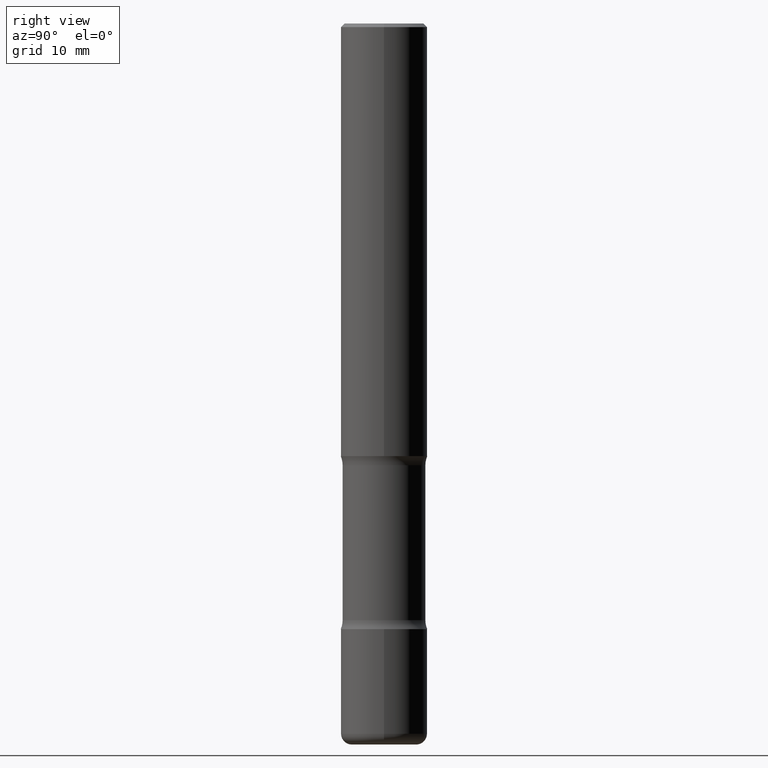
[diagram: clean part render]
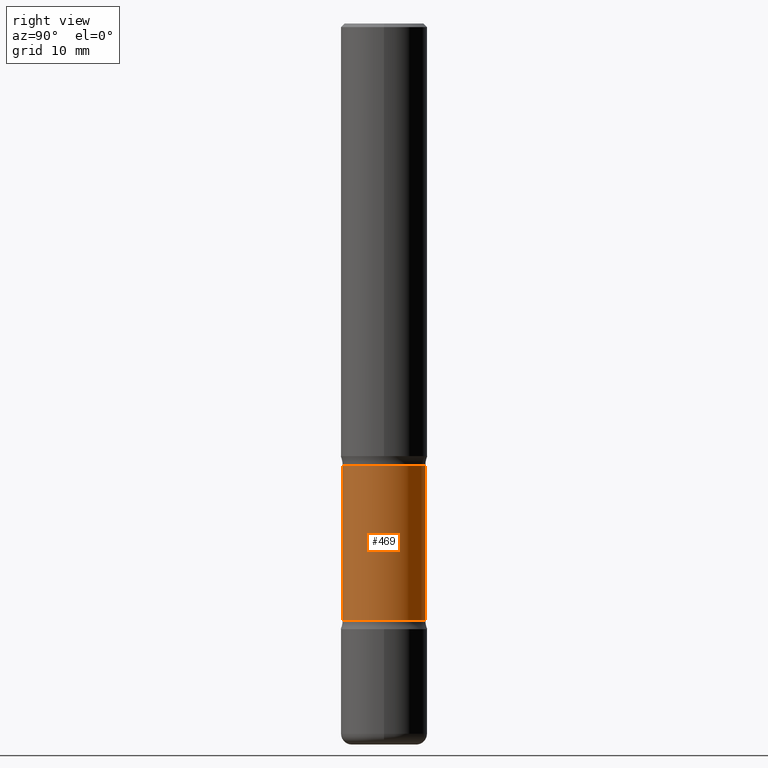
[diagram: same view with one face highlighted and labeled with its STEP entity id]
A machine part, right view. The second image highlights one B-rep face of the part: STEP entity #469.
In plain terms, the highlighted cylindrical surface (partial cylindrical patch) has radius 5.7391 mm, axis along (0, -0, -1).
Its self-contained STEP definition (entity closure, byte-faithful):
#2 = FACE_OUTER_BOUND ( 'NONE', #251, .T. ) ;
#9 = AXIS2_PLACEMENT_3D ( 'NONE', #273, #316, #485 ) ;
#19 = ORIENTED_EDGE ( 'NONE', *, *, #306, .T. ) ;
#24 = CARTESIAN_POINT ( 'NONE',  ( 1.577800417023270691E-15, 0.2259499999999915743, -2.411772547846566805 ) ) ;
#25 = CARTESIAN_POINT ( 'NONE',  ( -1.585289574834976853E-15, -0.2259500000000114195, -3.257527452153434311 ) ) ;
#45 = DIRECTION ( 'NONE',  ( 2.573332013070723283E-29, -3.308373949061201717E-15, -1.000000000000000000 ) ) ;
#64 = CARTESIAN_POINT ( 'NONE',  ( -1.550129522596380948E-15, -0.2259500000000137232, -3.936999999999999389 ) ) ;
#69 = DIRECTION ( 'NONE',  ( 6.982962677686266711E-15, 1.000000000000000000, -2.418099573944910436E-15 ) ) ;
#78 = CARTESIAN_POINT ( 'NONE',  ( 1.577800417023309542E-15, 0.2259499999999864672, -3.937000000000000721 ) ) ;
#108 = EDGE_CURVE ( 'NONE', #324, #406, #225, .T. ) ;
#114 = VECTOR ( 'NONE', #239, 39.37007874015748143 ) ;
#129 = AXIS2_PLACEMENT_3D ( 'NONE', #414, #544, #69 ) ;
#130 = CYLINDRICAL_SURFACE ( 'NONE', #450, 0.2259500000000000952 ) ;
#178 = VECTOR ( 'NONE', #45, 39.37007874015748143 ) ;
#195 = ORIENTED_EDGE ( 'NONE', *, *, #326, .F. ) ;
#209 = CARTESIAN_POINT ( 'NONE',  ( 9.708351723968114409E-29, -1.363062268620181866E-14, -3.937000000000000277 ) ) ;
#222 = VERTEX_POINT ( 'NONE', #236 ) ;
#225 = CIRCLE ( 'NONE', #9, 0.2259500000000001507 ) ;
#236 = CARTESIAN_POINT ( 'NONE',  ( 1.577800417023291793E-15, 0.2259499999999886877, -3.257527452153435199 ) ) ;
#239 = DIRECTION ( 'NONE',  ( 2.573332013070723283E-29, -3.308373949061201717E-15, -1.000000000000000000 ) ) ;
#251 = EDGE_LOOP ( 'NONE', ( #460, #19, #195, #439 ) ) ;
#273 = CARTESIAN_POINT ( 'NONE',  ( 5.783435094127386859E-29, -8.584599917104405503E-15, -2.411772547846565917 ) ) ;
#297 = DIRECTION ( 'NONE',  ( 2.573332013070723283E-29, -3.308373949061201717E-15, -1.000000000000000000 ) ) ;
#306 = EDGE_CURVE ( 'NONE', #406, #310, #331, .T. ) ;
#310 = VERTEX_POINT ( 'NONE', #25 ) ;
#316 = DIRECTION ( 'NONE',  ( 2.573332013070723283E-29, -3.308373949061201717E-15, -1.000000000000000000 ) ) ;
#324 = VERTEX_POINT ( 'NONE', #24 ) ;
#326 = EDGE_CURVE ( 'NONE', #222, #310, #477, .T. ) ;
#331 = LINE ( 'NONE', #64, #114 ) ;
#406 = VERTEX_POINT ( 'NONE', #419 ) ;
#412 = LINE ( 'NONE', #78, #178 ) ;
#414 = CARTESIAN_POINT ( 'NONE',  ( 7.959843264591818864E-29, -1.138267340980399904E-14, -3.257527452153434755 ) ) ;
#419 = CARTESIAN_POINT ( 'NONE',  ( -1.585289574835001111E-15, -0.2259500000000087272, -2.411772547846565029 ) ) ;
#431 = EDGE_CURVE ( 'NONE', #324, #222, #412, .T. ) ;
#439 = ORIENTED_EDGE ( 'NONE', *, *, #431, .F. ) ;
#450 = AXIS2_PLACEMENT_3D ( 'NONE', #209, #297, #517 ) ;
#460 = ORIENTED_EDGE ( 'NONE', *, *, #108, .T. ) ;
#469 = ADVANCED_FACE ( 'NONE', ( #2 ), #130, .T. ) ;
#477 = CIRCLE ( 'NONE', #129, 0.2259500000000000397 ) ;
#485 = DIRECTION ( 'NONE',  ( 6.982962677686265922E-15, 1.000000000000000000, -3.627149360917363879E-15 ) ) ;
#517 = DIRECTION ( 'NONE',  ( 6.982962677686265922E-15, 1.000000000000000000, -2.418099573944910042E-15 ) ) ;
#544 = DIRECTION ( 'NONE',  ( 2.573332013070723283E-29, -3.308373949061201717E-15, -1.000000000000000000 ) ) ;